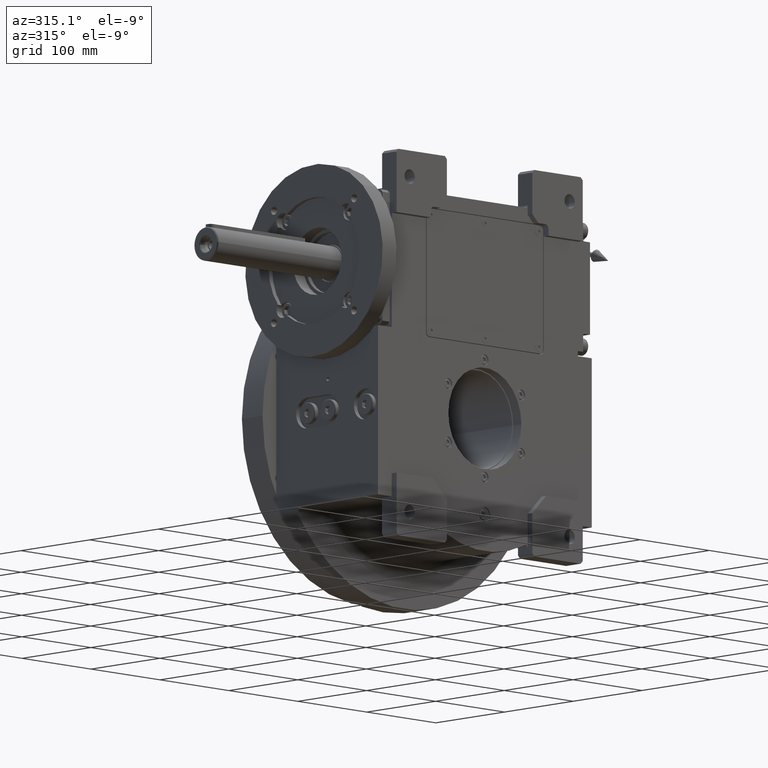
[diagram: clean part render]
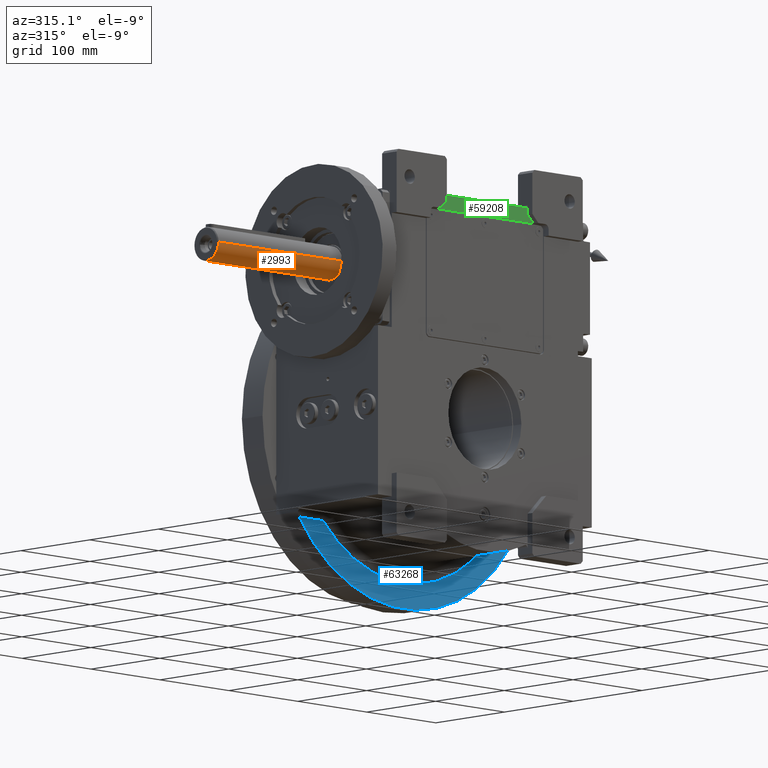
[diagram: same view with three faces highlighted in distinct colors, each labeled with its STEP entity id]
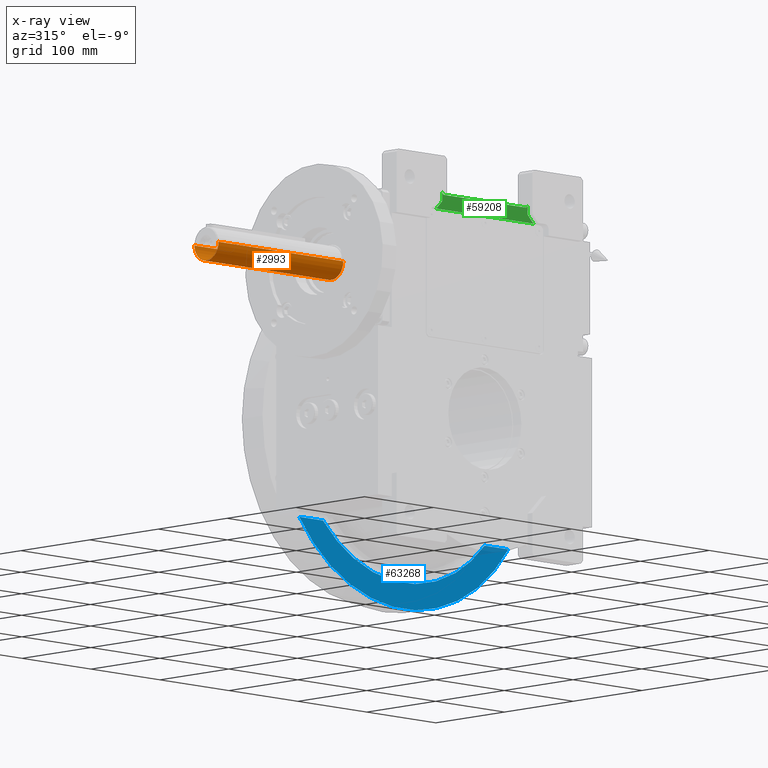
[diagram: x-ray of the same camera — body ghosted, the three highlighted faces saturated]
A machine part, auxiliary view with three faces highlighted in distinct colors.
The next image is the same camera in x-ray (body ghosted, the three faces saturated) — at least one of them is partly hidden behind the body in this view.
Their STEP definitions:

[orange] entity #2993 — the highlighted cylindrical surface (edge-blend (fillet) strip) has radius 17.5 mm, axis along (-1, 0, -0).
#603 = VERTEX_POINT ( 'NONE', #715 ) ;
#715 = CARTESIAN_POINT ( 'NONE',  ( -17.50000000000000000, -264.0000000000000000, 0.000000000000000000 ) ) ;
#1701 = EDGE_CURVE ( 'NONE', #18889, #603, #20198, .T. ) ;
#1970 = CARTESIAN_POINT ( 'NONE',  ( 17.50000000000000000, -264.0000000000000000, 0.000000000000000000 ) ) ;
#2993 = ADVANCED_FACE ( 'NONE', ( #69673 ), #31117, .T. ) ;
#3434 = CARTESIAN_POINT ( 'NONE',  ( -17.50000000000000000, -82.99999999999998579, 0.000000000000000000 ) ) ;
#3843 = LINE ( 'NONE', #70739, #64119 ) ;
#4403 = CIRCLE ( 'NONE', #69445, 17.50000000000000000 ) ;
#5732 = ORIENTED_EDGE ( 'NONE', *, *, #20678, .F. ) ;
#6032 = AXIS2_PLACEMENT_3D ( 'NONE', #36408, #36045, #20083 ) ;
#7678 = CARTESIAN_POINT ( 'NONE',  ( 1.476596622753136137E-13, -264.0000000000000000, -17.50000000001987033 ) ) ;
#8108 = VERTEX_POINT ( 'NONE', #43391 ) ;
#8921 = AXIS2_PLACEMENT_3D ( 'NONE', #45133, #17139, #42673 ) ;
#10221 = EDGE_CURVE ( 'NONE', #603, #56588, #62331, .T. ) ;
#12280 = VECTOR ( 'NONE', #47460, 1000.000000000000000 ) ;
#17139 = DIRECTION ( 'NONE',  ( 4.683861624749757595E-31, -1.000000000000000000, -9.921124691641434438E-31 ) ) ;
#17567 = DIRECTION ( 'NONE',  ( 4.683861624749757595E-31, -1.000000000000000000, -9.921124691641434438E-31 ) ) ;
#17695 = ORIENTED_EDGE ( 'NONE', *, *, #1701, .F. ) ;
#18889 = VERTEX_POINT ( 'NONE', #3434 ) ;
#20083 = DIRECTION ( 'NONE',  ( -8.437694987151189707E-15, 2.379049338482478132E-15, 1.000000000000000000 ) ) ;
#20198 = LINE ( 'NONE', #64883, #12280 ) ;
#20678 = EDGE_CURVE ( 'NONE', #56588, #68478, #4403, .T. ) ;
#25343 = AXIS2_PLACEMENT_3D ( 'NONE', #52929, #70750, #36885 ) ;
#25841 = ORIENTED_EDGE ( 'NONE', *, *, #10221, .F. ) ;
#26032 = DIRECTION ( 'NONE',  ( 1.547948530345931256E-10, 1.000000000000000000, 8.275136925702999375E-10 ) ) ;
#27514 = EDGE_LOOP ( 'NONE', ( #17695, #53078, #58266, #5732, #25841 ) ) ;
#31117 = CYLINDRICAL_SURFACE ( 'NONE', #25343, 17.50000000000000000 ) ;
#36045 = DIRECTION ( 'NONE',  ( 1.322191977396639089E-16, -1.000000000000000000, 2.442490654175352672E-15 ) ) ;
#36408 = CARTESIAN_POINT ( 'NONE',  ( 4.391120273202897745E-29, -82.99999999999998579, 0.000000000000000000 ) ) ;
#36885 = DIRECTION ( 'NONE',  ( 1.000000000000000000, 0.000000000000000000, -8.437694987151189707E-15 ) ) ;
#40866 = CIRCLE ( 'NONE', #6032, 17.50000000000000000 ) ;
#42673 = DIRECTION ( 'NONE',  ( -1.000000000000000000, 0.000000000000000000, 8.437694987151189707E-15 ) ) ;
#43391 = CARTESIAN_POINT ( 'NONE',  ( 17.49999999891786828, -82.99999999999995737, -5.792588630981754250E-09 ) ) ;
#45133 = CARTESIAN_POINT ( 'NONE',  ( 1.178669125964988342E-28, -264.0000000000000000, 0.000000000000000000 ) ) ;
#47208 = EDGE_CURVE ( 'NONE', #18889, #8108, #40866, .T. ) ;
#47460 = DIRECTION ( 'NONE',  ( 1.547948341370931421E-10, -1.000000000000000000, 8.275137155567000740E-10 ) ) ;
#49395 = EDGE_CURVE ( 'NONE', #68478, #8108, #3843, .T. ) ;
#51016 = CARTESIAN_POINT ( 'NONE',  ( 1.178669125964988342E-28, -264.0000000000000000, 0.000000000000000000 ) ) ;
#52929 = CARTESIAN_POINT ( 'NONE',  ( 4.410379572646770103E-29, -76.00000000000001421, 0.000000000000000000 ) ) ;
#53078 = ORIENTED_EDGE ( 'NONE', *, *, #47208, .T. ) ;
#56588 = VERTEX_POINT ( 'NONE', #7678 ) ;
#58266 = ORIENTED_EDGE ( 'NONE', *, *, #49395, .F. ) ;
#62331 = CIRCLE ( 'NONE', #8921, 17.50000000000000000 ) ;
#64119 = VECTOR ( 'NONE', #26032, 1000.000000000000000 ) ;
#64883 = CARTESIAN_POINT ( 'NONE',  ( -17.49999999999986855, -76.00000000000001421, 0.000000000000000000 ) ) ;
#68478 = VERTEX_POINT ( 'NONE', #1970 ) ;
#69445 = AXIS2_PLACEMENT_3D ( 'NONE', #51016, #17567, #70781 ) ;
#69673 = FACE_OUTER_BOUND ( 'NONE', #27514, .T. ) ;
#70739 = CARTESIAN_POINT ( 'NONE',  ( 17.49999997089999937, -264.0000000291000219, -1.555725825941323137E-07 ) ) ;
#70750 = DIRECTION ( 'NONE',  ( 4.683861624749757595E-31, -1.000000000000000000, -9.921124691641434438E-31 ) ) ;
#70781 = DIRECTION ( 'NONE',  ( -1.000000000000000000, 0.000000000000000000, 8.437694987151189707E-15 ) ) ;

[blue] entity #63268 — the highlighted planar face has unit normal (0, -1, 0).
#1384 = DIRECTION ( 'NONE',  ( -1.000000000000000000, 0.000000000000000000, 0.000000000000000000 ) ) ;
#2027 = CARTESIAN_POINT ( 'NONE',  ( 0.000000000000000000, 45.00000000000000000, 0.000000000000000000 ) ) ;
#2916 = CARTESIAN_POINT ( 'NONE',  ( 117.1665481270144085, 45.00000000000000000, -106.0000000000000000 ) ) ;
#3995 = CARTESIAN_POINT ( 'NONE',  ( -101.7965497933509909, 45.00000000000000000, -121.4959109195396110 ) ) ;
#5682 = CARTESIAN_POINT ( 'NONE',  ( -117.1660380023439956, 45.00001431931600138, -105.9999239592122109 ) ) ;
#7495 = PLANE ( 'NONE',  #52909 ) ;
#7544 = LINE ( 'NONE', #34446, #56381 ) ;
#8004 = CARTESIAN_POINT ( 'NONE',  ( -112.2729284226672064, 45.00000000000000000, -111.4014722087632094 ) ) ;
#8354 = CARTESIAN_POINT ( 'NONE',  ( 64.41571053208299702, 45.00000000000000000, -144.8384350625149750 ) ) ;
#9071 = CARTESIAN_POINT ( 'NONE',  ( 21.98865651185814940, 45.00000000000000000, -156.9786712556644943 ) ) ;
#14170 = CARTESIAN_POINT ( 'NONE',  ( -21.98885812455730360, 45.00000000000000000, -156.9786534940429874 ) ) ;
#17042 = VERTEX_POINT ( 'NONE', #5682 ) ;
#17585 = EDGE_LOOP ( 'NONE', ( #45420, #59433, #66620, #48238 ) ) ;
#17790 = AXIS2_PLACEMENT_3D ( 'NONE', #59289, #44396, #66580 ) ;
#18933 = CARTESIAN_POINT ( 'NONE',  ( 83.96432363714539804, 45.00000000000000000, -134.4519182908273933 ) ) ;
#19266 = CARTESIAN_POINT ( 'NONE',  ( 101.7963591369399978, 45.00000000000000000, -121.4958819722340024 ) ) ;
#26039 = CARTESIAN_POINT ( 'NONE',  ( 117.1665481270144085, 45.00000000000000000, -106.0000000000000000 ) ) ;
#26184 = CARTESIAN_POINT ( 'NONE',  ( -83.96482471285689542, 45.00000000000000000, -134.4515343287771998 ) ) ;
#26386 = DIRECTION ( 'NONE',  ( 1.000000000000000000, 0.000000000000000000, 0.000000000000000000 ) ) ;
#28208 = EDGE_CURVE ( 'NONE', #71191, #71522, #65378, .T. ) ;
#30198 = CARTESIAN_POINT ( 'NONE',  ( -64.41635450183450473, 45.00000000000000000, -144.8381713325094324 ) ) ;
#34446 = CARTESIAN_POINT ( 'NONE',  ( -117.1655163986673927, 45.00000000000000000, -106.0000000000000000 ) ) ;
#35610 = CARTESIAN_POINT ( 'NONE',  ( -4.611055527989799422E-05, 45.00000000000000000, -158.5100177325210211 ) ) ;
#36911 = CARTESIAN_POINT ( 'NONE',  ( -151.6212386178135034, 45.00000000000000000, -106.0000000000000000 ) ) ;
#37607 = LINE ( 'NONE', #26039, #68556 ) ;
#38239 = EDGE_CURVE ( 'NONE', #17042, #71522, #7544, .T. ) ;
#39224 = VERTEX_POINT ( 'NONE', #49512 ) ;
#41407 = CARTESIAN_POINT ( 'NONE',  ( 112.2734842588863842, 45.00000000000000000, -111.4014792453958052 ) ) ;
#41514 = B_SPLINE_CURVE_WITH_KNOTS ( 'NONE', 3,
 ( #53800, #8004, #3995, #26184, #30198, #63611, #14170, #35610, #9071, #68739, #8354, #18933, #19266, #41407, #2916 ),
 .UNSPECIFIED., .F., .F.,
 ( 4, 1, 1, 1, 1, 1, 1, 1, 1, 1, 1, 1, 4 ),
 ( 0.000000000000000000, 0.08230548578115730318, 0.1657096187028465062, 0.2495666647837894991, 0.3333347921405550029, 0.4167731287220560188, 0.4999985279742480415, 0.5832235921521099486, 0.6666606947103580483, 0.7504274457011970156, 0.8342845243559869894, 0.9176906032219021014, 1.000000000000000000 ),
 .UNSPECIFIED. ) ;
#42340 = DIRECTION ( 'NONE',  ( 0.000000000000000000, 0.000000000000000000, 1.000000000000000000 ) ) ;
#44396 = DIRECTION ( 'NONE',  ( 0.000000000000000000, 1.000000000000000000, 0.000000000000000000 ) ) ;
#45420 = ORIENTED_EDGE ( 'NONE', *, *, #61162, .F. ) ;
#46062 = CARTESIAN_POINT ( 'NONE',  ( 151.6212386178135034, 45.00000000000000000, -106.0000000000000000 ) ) ;
#48238 = ORIENTED_EDGE ( 'NONE', *, *, #56359, .F. ) ;
#49512 = CARTESIAN_POINT ( 'NONE',  ( 117.1665481270144085, 45.00000000000000000, -106.0000000000000000 ) ) ;
#52909 = AXIS2_PLACEMENT_3D ( 'NONE', #2027, #64518, #42340 ) ;
#53800 = CARTESIAN_POINT ( 'NONE',  ( -117.1660380023439956, 45.00001431931600138, -105.9999239592122109 ) ) ;
#56359 = EDGE_CURVE ( 'NONE', #39224, #71191, #37607, .T. ) ;
#56381 = VECTOR ( 'NONE', #1384, 1000.000000000000000 ) ;
#57314 = FACE_OUTER_BOUND ( 'NONE', #17585, .T. ) ;
#59289 = CARTESIAN_POINT ( 'NONE',  ( 0.000000000000000000, 45.00000000000000000, 0.000000000000000000 ) ) ;
#59433 = ORIENTED_EDGE ( 'NONE', *, *, #38239, .T. ) ;
#61162 = EDGE_CURVE ( 'NONE', #17042, #39224, #41514, .T. ) ;
#63268 = ADVANCED_FACE ( 'NONE', ( #57314 ), #7495, .T. ) ;
#63611 = CARTESIAN_POINT ( 'NONE',  ( -43.59914018231285127, 45.00000000000000000, -152.4009961974019802 ) ) ;
#64518 = DIRECTION ( 'NONE',  ( 0.000000000000000000, -1.000000000000000000, 0.000000000000000000 ) ) ;
#65378 = CIRCLE ( 'NONE', #17790, 185.0000000000000000 ) ;
#66580 = DIRECTION ( 'NONE',  ( 0.8195742627989930362, 0.000000000000000000, -0.5729729729729730048 ) ) ;
#66620 = ORIENTED_EDGE ( 'NONE', *, *, #28208, .F. ) ;
#68556 = VECTOR ( 'NONE', #26386, 1000.000000000000000 ) ;
#68739 = CARTESIAN_POINT ( 'NONE',  ( 43.59869364544040593, 45.00000000000000000, -152.4011103777230005 ) ) ;
#71191 = VERTEX_POINT ( 'NONE', #46062 ) ;
#71522 = VERTEX_POINT ( 'NONE', #36911 ) ;

[green] entity #59208 — the highlighted planar face has unit normal (0, 1, 0).
#322 = CARTESIAN_POINT ( 'NONE',  ( -59.00000000000000000, -73.00000000000000000, 226.0000000000000000 ) ) ;
#1189 = DIRECTION ( 'NONE',  ( 0.000000000000000000, 1.000000000000000000, 0.000000000000000000 ) ) ;
#2194 = CARTESIAN_POINT ( 'NONE',  ( -70.50000000000000000, -73.00000000000000000, 210.5000000000000000 ) ) ;
#2806 = CARTESIAN_POINT ( 'NONE',  ( -62.00000000000000000, -73.00000000000000000, 219.0000000000000000 ) ) ;
#4356 = LINE ( 'NONE', #71281, #51622 ) ;
#5271 = ORIENTED_EDGE ( 'NONE', *, *, #10198, .F. ) ;
#8470 = LINE ( 'NONE', #18665, #51277 ) ;
#9966 = DIRECTION ( 'NONE',  ( 0.000000000000000000, 0.000000000000000000, 1.000000000000000000 ) ) ;
#10198 = EDGE_CURVE ( 'NONE', #30427, #46631, #53967, .T. ) ;
#15067 = VECTOR ( 'NONE', #65986, 1000.000000000000000 ) ;
#15820 = DIRECTION ( 'NONE',  ( 1.000000000000000000, 0.000000000000000000, 0.000000000000000000 ) ) ;
#16186 = LINE ( 'NONE', #32182, #50709 ) ;
#17681 = ORIENTED_EDGE ( 'NONE', *, *, #56659, .F. ) ;
#17694 = ORIENTED_EDGE ( 'NONE', *, *, #48386, .F. ) ;
#18665 = CARTESIAN_POINT ( 'NONE',  ( 70.50000000000000000, -73.00000000000000000, 210.5000000000000000 ) ) ;
#20578 = CARTESIAN_POINT ( 'NONE',  ( 0.000000000000000000, -73.00000000000000000, 0.000000000000000000 ) ) ;
#20722 = VERTEX_POINT ( 'NONE', #23397 ) ;
#20808 = CIRCLE ( 'NONE', #49836, 3.000000000000002665 ) ;
#23376 = DIRECTION ( 'NONE',  ( -4.625929269271481378E-15, 0.000000000000000000, -1.000000000000000000 ) ) ;
#23397 = CARTESIAN_POINT ( 'NONE',  ( 70.50000000000000000, -73.00000000000000000, 210.5000000000000000 ) ) ;
#23866 = VERTEX_POINT ( 'NONE', #57487 ) ;
#24908 = EDGE_CURVE ( 'NONE', #33198, #30427, #39411, .T. ) ;
#26913 = DIRECTION ( 'NONE',  ( 0.000000000000000000, 0.000000000000000000, -1.000000000000000000 ) ) ;
#26927 = AXIS2_PLACEMENT_3D ( 'NONE', #20578, #65297, #42737 ) ;
#27968 = AXIS2_PLACEMENT_3D ( 'NONE', #39692, #1189, #23376 ) ;
#28840 = VERTEX_POINT ( 'NONE', #322 ) ;
#29159 = CIRCLE ( 'NONE', #27968, 3.000000000000002665 ) ;
#29875 = CARTESIAN_POINT ( 'NONE',  ( 62.00000000000000000, -73.00000000000000000, 219.0000000000000000 ) ) ;
#30238 = ORIENTED_EDGE ( 'NONE', *, *, #24908, .F. ) ;
#30427 = VERTEX_POINT ( 'NONE', #2806 ) ;
#31496 = FACE_OUTER_BOUND ( 'NONE', #61831, .T. ) ;
#32140 = CARTESIAN_POINT ( 'NONE',  ( -62.00000000000000000, -73.00000000000000000, 219.0000000000000000 ) ) ;
#32182 = CARTESIAN_POINT ( 'NONE',  ( -59.00000000000000000, -73.00000000000000000, 226.0000000000000000 ) ) ;
#33198 = VERTEX_POINT ( 'NONE', #2194 ) ;
#37139 = VERTEX_POINT ( 'NONE', #64552 ) ;
#39411 = LINE ( 'NONE', #71467, #15067 ) ;
#39692 = CARTESIAN_POINT ( 'NONE',  ( -59.00000000000000000, -73.00000000000000000, 229.0000000000000000 ) ) ;
#42737 = DIRECTION ( 'NONE',  ( 1.000000000000000000, 0.000000000000000000, 0.000000000000000000 ) ) ;
#42960 = ORIENTED_EDGE ( 'NONE', *, *, #70268, .T. ) ;
#43984 = EDGE_CURVE ( 'NONE', #37139, #23866, #20808, .T. ) ;
#44758 = ORIENTED_EDGE ( 'NONE', *, *, #43984, .T. ) ;
#45663 = CARTESIAN_POINT ( 'NONE',  ( -62.00000000000000000, -73.00000000000000000, 229.0000000000000000 ) ) ;
#46340 = CARTESIAN_POINT ( 'NONE',  ( 59.00000000000000000, -73.00000000000000000, 229.0000000000000000 ) ) ;
#46577 = CARTESIAN_POINT ( 'NONE',  ( 62.00000000000000000, -73.00000000000000000, 219.0000000000000000 ) ) ;
#46631 = VERTEX_POINT ( 'NONE', #45663 ) ;
#48220 = PLANE ( 'NONE',  #26927 ) ;
#48386 = EDGE_CURVE ( 'NONE', #20722, #33198, #8470, .T. ) ;
#49510 = ORIENTED_EDGE ( 'NONE', *, *, #50701, .F. ) ;
#49836 = AXIS2_PLACEMENT_3D ( 'NONE', #46340, #68534, #50728 ) ;
#50068 = VERTEX_POINT ( 'NONE', #29875 ) ;
#50701 = EDGE_CURVE ( 'NONE', #28840, #23866, #16186, .T. ) ;
#50709 = VECTOR ( 'NONE', #15820, 1000.000000000000000 ) ;
#50728 = DIRECTION ( 'NONE',  ( 1.000000000000000000, 0.000000000000000000, 0.000000000000000000 ) ) ;
#51277 = VECTOR ( 'NONE', #52462, 1000.000000000000000 ) ;
#51622 = VECTOR ( 'NONE', #26913, 1000.000000000000000 ) ;
#52035 = LINE ( 'NONE', #46577, #69751 ) ;
#52462 = DIRECTION ( 'NONE',  ( -1.000000000000000000, 0.000000000000000000, 0.000000000000000000 ) ) ;
#53044 = VECTOR ( 'NONE', #9966, 1000.000000000000000 ) ;
#53469 = DIRECTION ( 'NONE',  ( 0.7071067811865470176, 0.000000000000000000, -0.7071067811865480168 ) ) ;
#53967 = LINE ( 'NONE', #32140, #53044 ) ;
#56659 = EDGE_CURVE ( 'NONE', #50068, #20722, #52035, .T. ) ;
#57487 = CARTESIAN_POINT ( 'NONE',  ( 59.00000000000000000, -73.00000000000000000, 226.0000000000000000 ) ) ;
#59208 = ADVANCED_FACE ( 'NONE', ( #31496 ), #48220, .F. ) ;
#61831 = EDGE_LOOP ( 'NONE', ( #17681, #68114, #44758, #49510, #42960, #5271, #30238, #17694 ) ) ;
#62470 = EDGE_CURVE ( 'NONE', #37139, #50068, #4356, .T. ) ;
#64552 = CARTESIAN_POINT ( 'NONE',  ( 62.00000000000000000, -73.00000000000000000, 229.0000000000000000 ) ) ;
#65297 = DIRECTION ( 'NONE',  ( -0.000000000000000000, 1.000000000000000000, 0.000000000000000000 ) ) ;
#65986 = DIRECTION ( 'NONE',  ( 0.7071067811865480168, 0.000000000000000000, 0.7071067811865470176 ) ) ;
#68114 = ORIENTED_EDGE ( 'NONE', *, *, #62470, .F. ) ;
#68534 = DIRECTION ( 'NONE',  ( 0.000000000000000000, 1.000000000000000000, 0.000000000000000000 ) ) ;
#69751 = VECTOR ( 'NONE', #53469, 1000.000000000000000 ) ;
#70268 = EDGE_CURVE ( 'NONE', #28840, #46631, #29159, .T. ) ;
#71281 = CARTESIAN_POINT ( 'NONE',  ( 62.00000000000000000, -73.00000000000000000, 229.0000000000000000 ) ) ;
#71467 = CARTESIAN_POINT ( 'NONE',  ( -70.50000000000000000, -73.00000000000000000, 210.5000000000000000 ) ) ;